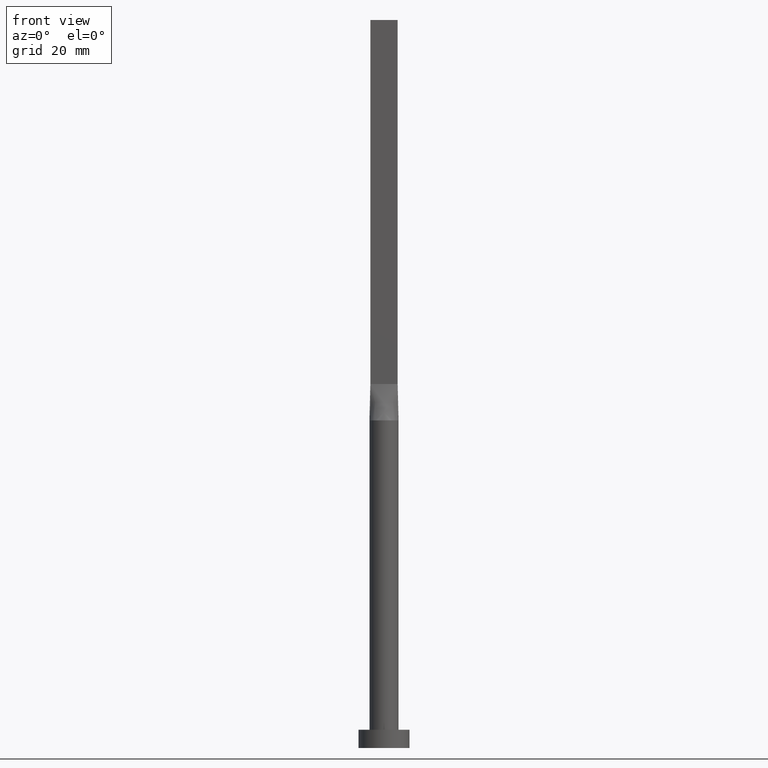
[diagram: clean part render]
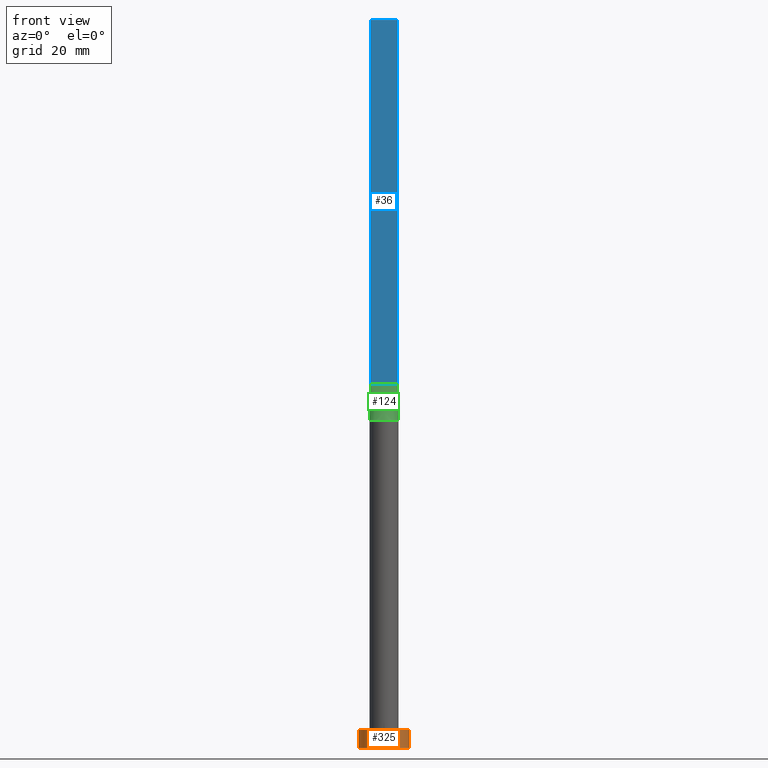
[diagram: same view with three faces highlighted in distinct colors, each labeled with its STEP entity id]
A machine part, front view with three faces highlighted in distinct colors.
Their STEP definitions:

[orange] entity #325 — the highlighted cylindrical surface (edge-blend (fillet) strip) has radius 7 mm, axis along (-0, -0, -1).
#33 = VERTEX_POINT ( 'NONE', #389 ) ;
#48 = CARTESIAN_POINT ( 'NONE',  ( -7.000000000000000000, 0.000000000000000000, 5.000000000000000000 ) ) ;
#78 = CIRCLE ( 'NONE', #406, 7.000000000000000000 ) ;
#86 = DIRECTION ( 'NONE',  ( 0.000000000000000000, 0.000000000000000000, 1.000000000000000000 ) ) ;
#99 = EDGE_CURVE ( 'NONE', #102, #33, #323, .T. ) ;
#102 = VERTEX_POINT ( 'NONE', #526 ) ;
#117 = DIRECTION ( 'NONE',  ( 0.000000000000000000, 0.000000000000000000, 1.000000000000000000 ) ) ;
#139 = CARTESIAN_POINT ( 'NONE',  ( 7.000000000000000000, 8.572527594031473190E-16, 5.000000000000000000 ) ) ;
#156 = CARTESIAN_POINT ( 'NONE',  ( 0.000000000000000000, 0.000000000000000000, 0.000000000000000000 ) ) ;
#164 = DIRECTION ( 'NONE',  ( 1.000000000000000000, 0.000000000000000000, 0.000000000000000000 ) ) ;
#174 = CYLINDRICAL_SURFACE ( 'NONE', #447, 7.000000000000000000 ) ;
#213 = FACE_OUTER_BOUND ( 'NONE', #357, .T. ) ;
#219 = EDGE_CURVE ( 'NONE', #275, #102, #564, .T. ) ;
#223 = CARTESIAN_POINT ( 'NONE',  ( 7.000000000000000000, 8.572527594031473190E-16, 5.000000000000000000 ) ) ;
#244 = EDGE_CURVE ( 'NONE', #275, #445, #78, .T. ) ;
#270 = LINE ( 'NONE', #139, #573 ) ;
#275 = VERTEX_POINT ( 'NONE', #48 ) ;
#280 = DIRECTION ( 'NONE',  ( -1.000000000000000000, 0.000000000000000000, 0.000000000000000000 ) ) ;
#308 = DIRECTION ( 'NONE',  ( 1.000000000000000000, 0.000000000000000000, 0.000000000000000000 ) ) ;
#311 = ORIENTED_EDGE ( 'NONE', *, *, #244, .F. ) ;
#323 = CIRCLE ( 'NONE', #415, 7.000000000000000000 ) ;
#325 = ADVANCED_FACE ( 'NONE', ( #213 ), #174, .T. ) ;
#357 = EDGE_LOOP ( 'NONE', ( #548, #311, #464, #550 ) ) ;
#389 = CARTESIAN_POINT ( 'NONE',  ( 7.000000000000000000, 8.572527594031473190E-16, 0.000000000000000000 ) ) ;
#405 = DIRECTION ( 'NONE',  ( -0.000000000000000000, -0.000000000000000000, -1.000000000000000000 ) ) ;
#406 = AXIS2_PLACEMENT_3D ( 'NONE', #489, #86, #308 ) ;
#415 = AXIS2_PLACEMENT_3D ( 'NONE', #156, #117, #164 ) ;
#445 = VERTEX_POINT ( 'NONE', #223 ) ;
#447 = AXIS2_PLACEMENT_3D ( 'NONE', #536, #547, #280 ) ;
#455 = EDGE_CURVE ( 'NONE', #445, #33, #270, .T. ) ;
#464 = ORIENTED_EDGE ( 'NONE', *, *, #219, .T. ) ;
#471 = CARTESIAN_POINT ( 'NONE',  ( -7.000000000000000000, 0.000000000000000000, 5.000000000000000000 ) ) ;
#477 = VECTOR ( 'NONE', #558, 1000.000000000000000 ) ;
#489 = CARTESIAN_POINT ( 'NONE',  ( 0.000000000000000000, 0.000000000000000000, 5.000000000000000000 ) ) ;
#526 = CARTESIAN_POINT ( 'NONE',  ( -7.000000000000000000, 0.000000000000000000, 0.000000000000000000 ) ) ;
#536 = CARTESIAN_POINT ( 'NONE',  ( 0.000000000000000000, 0.000000000000000000, 5.000000000000000000 ) ) ;
#547 = DIRECTION ( 'NONE',  ( -0.000000000000000000, -0.000000000000000000, -1.000000000000000000 ) ) ;
#548 = ORIENTED_EDGE ( 'NONE', *, *, #455, .F. ) ;
#550 = ORIENTED_EDGE ( 'NONE', *, *, #99, .T. ) ;
#558 = DIRECTION ( 'NONE',  ( -0.000000000000000000, -0.000000000000000000, -1.000000000000000000 ) ) ;
#564 = LINE ( 'NONE', #471, #477 ) ;
#573 = VECTOR ( 'NONE', #405, 1000.000000000000000 ) ;

[blue] entity #36 — the highlighted planar face has unit normal (0, 1, -0).
#18 = ORIENTED_EDGE ( 'NONE', *, *, #476, .F. ) ;
#21 = VECTOR ( 'NONE', #63, 1000.000000000000000 ) ;
#35 = CARTESIAN_POINT ( 'NONE',  ( -3.750000000000000000, -0.5999999999999993117, 200.0000000000000000 ) ) ;
#36 = ADVANCED_FACE ( 'NONE', ( #572 ), #87, .F. ) ;
#49 = VERTEX_POINT ( 'NONE', #345 ) ;
#63 = DIRECTION ( 'NONE',  ( -0.000000000000000000, -0.000000000000000000, -1.000000000000000000 ) ) ;
#81 = DIRECTION ( 'NONE',  ( -1.000000000000000000, 5.782411586589358625E-17, 0.000000000000000000 ) ) ;
#87 = PLANE ( 'NONE',  #88 ) ;
#88 = AXIS2_PLACEMENT_3D ( 'NONE', #35, #166, #81 ) ;
#90 = LINE ( 'NONE', #175, #560 ) ;
#134 = CARTESIAN_POINT ( 'NONE',  ( 3.750000000000000000, -0.5999999999999997558, 100.0000000000000000 ) ) ;
#161 = CARTESIAN_POINT ( 'NONE',  ( -3.750000000000000000, -0.5999999999999993117, 100.0000000000000000 ) ) ;
#166 = DIRECTION ( 'NONE',  ( 5.782411586589358625E-17, 1.000000000000000000, -0.000000000000000000 ) ) ;
#175 = CARTESIAN_POINT ( 'NONE',  ( -3.750000000000000000, -0.5999999999999993117, 100.0000000000000000 ) ) ;
#188 = ORIENTED_EDGE ( 'NONE', *, *, #331, .F. ) ;
#189 = CARTESIAN_POINT ( 'NONE',  ( -3.750000000000000000, -0.5999999999999993117, 200.0000000000000000 ) ) ;
#207 = VERTEX_POINT ( 'NONE', #519 ) ;
#236 = VERTEX_POINT ( 'NONE', #134 ) ;
#252 = EDGE_CURVE ( 'NONE', #581, #236, #90, .T. ) ;
#268 = EDGE_CURVE ( 'NONE', #207, #581, #402, .T. ) ;
#276 = LINE ( 'NONE', #551, #21 ) ;
#304 = DIRECTION ( 'NONE',  ( -0.000000000000000000, -0.000000000000000000, -1.000000000000000000 ) ) ;
#314 = VECTOR ( 'NONE', #509, 1000.000000000000000 ) ;
#319 = LINE ( 'NONE', #189, #314 ) ;
#331 = EDGE_CURVE ( 'NONE', #49, #236, #276, .T. ) ;
#345 = CARTESIAN_POINT ( 'NONE',  ( 3.750000000000000000, -0.5999999999999997558, 200.0000000000000000 ) ) ;
#356 = DIRECTION ( 'NONE',  ( 1.000000000000000000, -5.782411586589357392E-17, 0.000000000000000000 ) ) ;
#360 = VECTOR ( 'NONE', #304, 1000.000000000000000 ) ;
#373 = ORIENTED_EDGE ( 'NONE', *, *, #268, .T. ) ;
#402 = LINE ( 'NONE', #492, #360 ) ;
#476 = EDGE_CURVE ( 'NONE', #207, #49, #319, .T. ) ;
#492 = CARTESIAN_POINT ( 'NONE',  ( -3.750000000000000000, -0.5999999999999993117, 200.0000000000000000 ) ) ;
#501 = ORIENTED_EDGE ( 'NONE', *, *, #252, .T. ) ;
#509 = DIRECTION ( 'NONE',  ( 1.000000000000000000, -5.782411586589357392E-17, 0.000000000000000000 ) ) ;
#513 = EDGE_LOOP ( 'NONE', ( #501, #188, #18, #373 ) ) ;
#519 = CARTESIAN_POINT ( 'NONE',  ( -3.750000000000000000, -0.5999999999999993117, 200.0000000000000000 ) ) ;
#551 = CARTESIAN_POINT ( 'NONE',  ( 3.750000000000000000, -0.5999999999999997558, 200.0000000000000000 ) ) ;
#560 = VECTOR ( 'NONE', #356, 1000.000000000000000 ) ;
#572 = FACE_OUTER_BOUND ( 'NONE', #513, .T. ) ;
#581 = VERTEX_POINT ( 'NONE', #161 ) ;

[green] entity #124 — the highlighted face is a freeform B-spline surface patch.
#3 = CARTESIAN_POINT ( 'NONE',  ( -0.3124999999999982792, -0.5999999999999995337, 100.0000000000000142 ) ) ;
#7 = CARTESIAN_POINT ( 'NONE',  ( -3.219262664220059023, -2.422342486356523050, 90.00000000000001421 ) ) ;
#10 = CARTESIAN_POINT ( 'NONE',  ( -2.553164211252349158, -3.116528153703943094, 90.00000000000008527 ) ) ;
#14 = VECTOR ( 'NONE', #377, 1000.000000000000000 ) ;
#30 = CARTESIAN_POINT ( 'NONE',  ( -3.437499999999999556, -0.5999999999999993117, 100.0000000000000000 ) ) ;
#39 = CARTESIAN_POINT ( 'NONE',  ( 3.125000000000000000, -0.5999999999999996447, 100.0000000000000000 ) ) ;
#41 = CARTESIAN_POINT ( 'NONE',  ( 3.949762527666821565, -0.6319620044266891501, 90.00000000000001421 ) ) ;
#51 = CARTESIAN_POINT ( 'NONE',  ( 0.3125000000000016098, -0.5999999999999995337, 100.0000000000000000 ) ) ;
#76 = LINE ( 'NONE', #163, #14 ) ;
#90 = LINE ( 'NONE', #175, #560 ) ;
#91 = EDGE_CURVE ( 'NONE', #495, #418, #295, .T. ) ;
#92 = CARTESIAN_POINT ( 'NONE',  ( -0.6249999999999978906, -0.5999999999999994227, 100.0000000000000000 ) ) ;
#97 = AXIS2_PLACEMENT_3D ( 'NONE', #243, #559, #300 ) ;
#123 = CARTESIAN_POINT ( 'NONE',  ( -3.949762527666821565, -0.6319620044266894832, 90.00000000000001421 ) ) ;
#124 = ADVANCED_FACE ( 'NONE', ( #128 ), #237, .T. ) ;
#128 = FACE_OUTER_BOUND ( 'NONE', #442, .T. ) ;
#134 = CARTESIAN_POINT ( 'NONE',  ( 3.750000000000000000, -0.5999999999999997558, 100.0000000000000000 ) ) ;
#135 = CARTESIAN_POINT ( 'NONE',  ( -3.461914487322979905, -2.043998057340941976, 89.99999999999997158 ) ) ;
#144 = EDGE_CURVE ( 'NONE', #418, #236, #574, .T. ) ;
#161 = CARTESIAN_POINT ( 'NONE',  ( -3.750000000000000000, -0.5999999999999993117, 100.0000000000000000 ) ) ;
#163 = CARTESIAN_POINT ( 'NONE',  ( -3.849881263833410561, -0.6159810022133443974, 95.00000000000000000 ) ) ;
#172 = CARTESIAN_POINT ( 'NONE',  ( 3.800365609718893367, -1.311488165564686614, 90.00000000000001421 ) ) ;
#175 = CARTESIAN_POINT ( 'NONE',  ( -3.750000000000000000, -0.5999999999999993117, 100.0000000000000000 ) ) ;
#176 = CARTESIAN_POINT ( 'NONE',  ( 0.5684794080625150681, -4.000000000000000888, 90.00000000000002842 ) ) ;
#181 = CARTESIAN_POINT ( 'NONE',  ( -1.562499999999998002, -0.5999999999999994227, 100.0000000000000000 ) ) ;
#183 = CARTESIAN_POINT ( 'NONE',  ( 1.134810363096319108, -3.874001625491798162, 90.00000000000000000 ) ) ;
#193 = CARTESIAN_POINT ( 'NONE',  ( 3.950116941581656604, -0.6320178829360038053, 90.00000000000001421 ) ) ;
#194 = EDGE_CURVE ( 'NONE', #581, #495, #76, .T. ) ;
#201 = CARTESIAN_POINT ( 'NONE',  ( -3.800365609718892923, -1.311488165564685726, 90.00000000000000000 ) ) ;
#211 = CARTESIAN_POINT ( 'NONE',  ( -2.127794970397209884, -3.430476893735947996, 90.00000000000000000 ) ) ;
#214 = CARTESIAN_POINT ( 'NONE',  ( 3.750000000000000000, -0.5999999999999997558, 100.0000000000000000 ) ) ;
#217 = CARTESIAN_POINT ( 'NONE',  ( -1.249999999999997558, -0.5999999999999994227, 100.0000000000000000 ) ) ;
#236 = VERTEX_POINT ( 'NONE', #134 ) ;
#237 = B_SPLINE_SURFACE_WITH_KNOTS ( 'NONE', 3, 1, ( 
 ( #123, #472 ),
 ( #293, #30 ),
 ( #201, #429 ),
 ( #135, #444 ),
 ( #7, #313 ),
 ( #10, #181 ),
 ( #211, #217 ),
 ( #500, #92 ),
 ( #451, #3 ),
 ( #176, #51 ),
 ( #183, #359 ),
 ( #578, #494 ),
 ( #543, #269 ),
 ( #352, #310 ),
 ( #257, #317 ),
 ( #172, #39 ),
 ( #306, #441 ),
 ( #41, #214 ) ),
 .UNSPECIFIED., .F., .F., .F.,
 ( 4, 2, 2, 2, 2, 2, 2, 2, 4 ),
 ( 2, 2 ),
 ( 0.000000000000000000, 0.1250000000000000555, 0.2500000000000001110, 0.3750000000000001665, 0.5000000000000001110, 0.6250000000000001110, 0.7500000000000001110, 0.8750000000000000000, 1.000000000000000000 ),
 ( 0.000000000000000000, 1.000000000000000000 ),
 .UNSPECIFIED. ) ;
#243 = CARTESIAN_POINT ( 'NONE',  ( 0.000000000000000000, 0.000000000000000000, 90.00000000000001421 ) ) ;
#252 = EDGE_CURVE ( 'NONE', #581, #236, #90, .T. ) ;
#257 = CARTESIAN_POINT ( 'NONE',  ( 3.461914487322980349, -2.043998057340943753, 90.00000000000002842 ) ) ;
#269 = CARTESIAN_POINT ( 'NONE',  ( 1.562500000000001776, -0.5999999999999996447, 100.0000000000000000 ) ) ;
#293 = CARTESIAN_POINT ( 'NONE',  ( -3.897760447583618948, -0.9569750049467102837, 90.00000000000000000 ) ) ;
#295 = CIRCLE ( 'NONE', #97, 4.000000000000000000 ) ;
#300 = DIRECTION ( 'NONE',  ( 1.000000000000000000, 0.000000000000000000, 0.000000000000000000 ) ) ;
#306 = CARTESIAN_POINT ( 'NONE',  ( 3.897760447583619836, -0.9569750049467118380, 90.00000000000001421 ) ) ;
#310 = CARTESIAN_POINT ( 'NONE',  ( 2.187500000000000888, -0.5999999999999996447, 100.0000000000000000 ) ) ;
#313 = CARTESIAN_POINT ( 'NONE',  ( -2.187499999999998668, -0.5999999999999994227, 100.0000000000000000 ) ) ;
#317 = CARTESIAN_POINT ( 'NONE',  ( 2.500000000000000444, -0.5999999999999996447, 100.0000000000000000 ) ) ;
#320 = ORIENTED_EDGE ( 'NONE', *, *, #252, .F. ) ;
#328 = ORIENTED_EDGE ( 'NONE', *, *, #144, .T. ) ;
#352 = CARTESIAN_POINT ( 'NONE',  ( 3.219262664220059023, -2.422342486356523938, 90.00000000000002842 ) ) ;
#356 = DIRECTION ( 'NONE',  ( 1.000000000000000000, -5.782411586589357392E-17, 0.000000000000000000 ) ) ;
#359 = CARTESIAN_POINT ( 'NONE',  ( 0.6250000000000017764, -0.5999999999999995337, 100.0000000000000000 ) ) ;
#377 = DIRECTION ( 'NONE',  ( -0.01997216621675833650, -0.003195546594681206685, -0.9997954296047624201 ) ) ;
#388 = CARTESIAN_POINT ( 'NONE',  ( 3.849881263833410561, -0.6159810022133445084, 95.00000000000000000 ) ) ;
#398 = VECTOR ( 'NONE', #571, 1000.000000000000000 ) ;
#418 = VERTEX_POINT ( 'NONE', #193 ) ;
#429 = CARTESIAN_POINT ( 'NONE',  ( -3.124999999999999112, -0.5999999999999993117, 100.0000000000000000 ) ) ;
#441 = CARTESIAN_POINT ( 'NONE',  ( 3.437499999999999556, -0.5999999999999996447, 100.0000000000000000 ) ) ;
#442 = EDGE_LOOP ( 'NONE', ( #448, #328, #320, #553 ) ) ;
#444 = CARTESIAN_POINT ( 'NONE',  ( -2.499999999999998668, -0.5999999999999994227, 100.0000000000000000 ) ) ;
#448 = ORIENTED_EDGE ( 'NONE', *, *, #91, .T. ) ;
#451 = CARTESIAN_POINT ( 'NONE',  ( -0.5684794080625156232, -4.000000000000000000, 90.00000000000000000 ) ) ;
#472 = CARTESIAN_POINT ( 'NONE',  ( -3.750000000000000000, -0.5999999999999993117, 100.0000000000000000 ) ) ;
#494 = CARTESIAN_POINT ( 'NONE',  ( 1.250000000000001998, -0.5999999999999996447, 100.0000000000000000 ) ) ;
#495 = VERTEX_POINT ( 'NONE', #542 ) ;
#500 = CARTESIAN_POINT ( 'NONE',  ( -1.134810363096319996, -3.874001625491796830, 90.00000000000000000 ) ) ;
#542 = CARTESIAN_POINT ( 'NONE',  ( -3.950111798046394007, -0.6320171791297864994, 90.00000000000001421 ) ) ;
#543 = CARTESIAN_POINT ( 'NONE',  ( 2.553164211252348270, -3.116528153703943094, 90.00000000000001421 ) ) ;
#553 = ORIENTED_EDGE ( 'NONE', *, *, #194, .T. ) ;
#559 = DIRECTION ( 'NONE',  ( 0.000000000000000000, 0.000000000000000000, 1.000000000000000000 ) ) ;
#560 = VECTOR ( 'NONE', #356, 1000.000000000000000 ) ;
#571 = DIRECTION ( 'NONE',  ( -0.01997216621675833650, 0.003195546594681130791, 0.9997954296047624201 ) ) ;
#574 = LINE ( 'NONE', #388, #398 ) ;
#578 = CARTESIAN_POINT ( 'NONE',  ( 2.127794970397208552, -3.430476893735948440, 89.99999999999998579 ) ) ;
#581 = VERTEX_POINT ( 'NONE', #161 ) ;